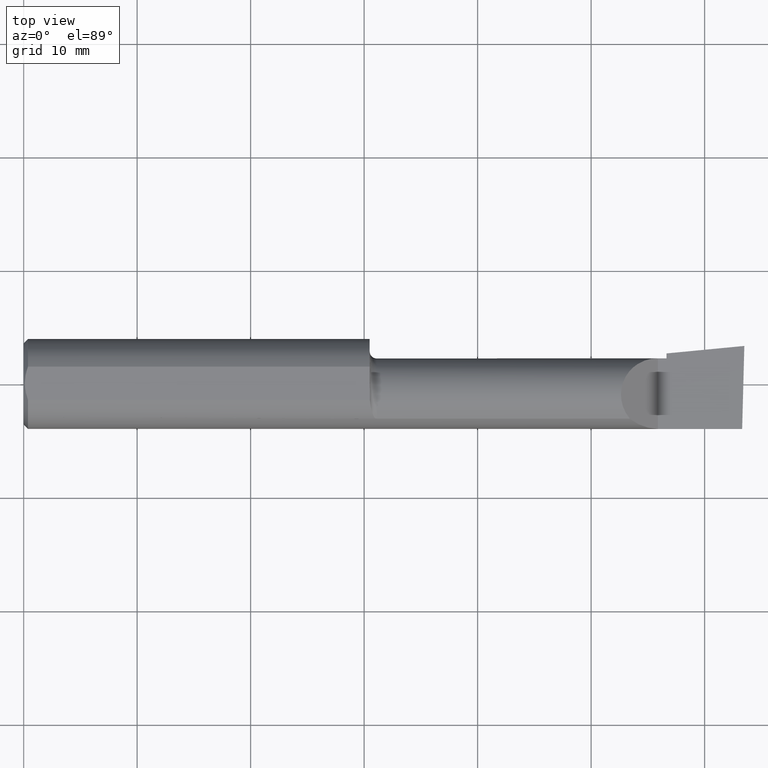
[diagram: clean part render]
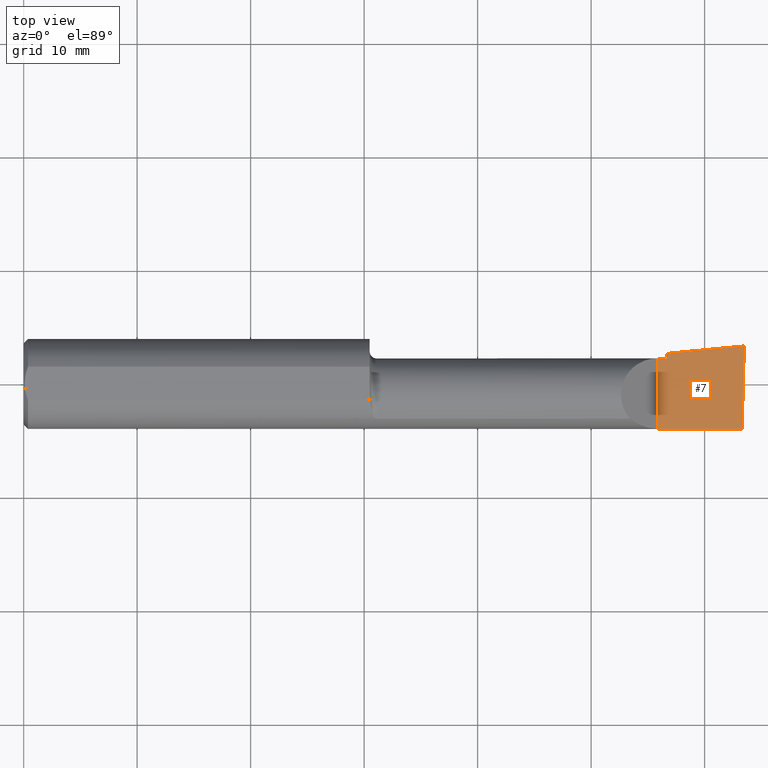
[diagram: same view with one face highlighted and labeled with its STEP entity id]
A machine part, top view. The second image highlights one B-rep face of the part: STEP entity #7.
In plain terms, the highlighted planar face has unit normal (-0, 0, -1).
Its self-contained STEP definition (entity closure, byte-faithful):
#3 = LINE ( 'NONE', #332, #149 ) ;
#7 = ADVANCED_FACE ( 'NONE', ( #220 ), #367, .F. ) ;
#54 = CARTESIAN_POINT ( 'NONE',  ( 2.490006449155409474, -0.2497383096613859377, 6.928474670396028486E-17 ) ) ;
#72 = CARTESIAN_POINT ( 'NONE',  ( 0.7251356390043992572, -0.03899999999999998607, 2.438630851709968122E-16 ) ) ;
#73 = VERTEX_POINT ( 'NONE', #509 ) ;
#86 = CARTESIAN_POINT ( 'NONE',  ( 8.735083959741788277E-19, 0.08889999999999995128, 3.155924005931204823E-16 ) ) ;
#133 = LINE ( 'NONE', #86, #293 ) ;
#149 = VECTOR ( 'NONE', #184, 39.37007874015748143 ) ;
#157 = VECTOR ( 'NONE', #418, 39.37007874015748143 ) ;
#158 = CARTESIAN_POINT ( 'NONE',  ( 2.200000000000000178, 0.08889999999999993741, 9.797174393178826150E-17 ) ) ;
#160 = CARTESIAN_POINT ( 'NONE',  ( 2.500000000000000000, -0.2500000000000000555, 6.829619984160658046E-17 ) ) ;
#167 = EDGE_LOOP ( 'NONE', ( #401, #267, #169, #320, #513, #303 ) ) ;
#169 = ORIENTED_EDGE ( 'NONE', *, *, #438, .F. ) ;
#170 = LINE ( 'NONE', #72, #518 ) ;
#174 = DIRECTION ( 'NONE',  ( 0.9953961983671787417, 0.09584575252022453640, -9.846307923948147589E-17 ) ) ;
#177 = VECTOR ( 'NONE', #305, 39.37007874015748143 ) ;
#184 = DIRECTION ( 'NONE',  ( 6.829619984160658816E-18, 1.000000000000000000, -6.755756298638184848E-34 ) ) ;
#219 = LINE ( 'NONE', #264, #157 ) ;
#220 = FACE_OUTER_BOUND ( 'NONE', #167, .T. ) ;
#228 = EDGE_CURVE ( 'NONE', #256, #73, #133, .T. ) ;
#246 = VERTEX_POINT ( 'NONE', #560 ) ;
#249 = EDGE_CURVE ( 'NONE', #393, #246, #252, .T. ) ;
#252 = LINE ( 'NONE', #54, #177 ) ;
#256 = VERTEX_POINT ( 'NONE', #158 ) ;
#264 = CARTESIAN_POINT ( 'NONE',  ( 2.200000000000000178, -0.2500000000000000555, 9.797174393178826150E-17 ) ) ;
#266 = VECTOR ( 'NONE', #549, 39.37007874015748143 ) ;
#267 = ORIENTED_EDGE ( 'NONE', *, *, #249, .T. ) ;
#282 = DIRECTION ( 'NONE',  ( 1.000000000000000000, -6.829619984160658046E-18, 0.000000000000000000 ) ) ;
#290 = VERTEX_POINT ( 'NONE', #592 ) ;
#293 = VECTOR ( 'NONE', #282, 39.37007874015748143 ) ;
#303 = ORIENTED_EDGE ( 'NONE', *, *, #483, .F. ) ;
#305 = DIRECTION ( 'NONE',  ( 0.02617694830786745225, 0.9996573249755573709, -2.550926060774605708E-18 ) ) ;
#319 = CARTESIAN_POINT ( 'NONE',  ( 2.229999999999999982, 0.1059019569866683358, 3.158699242674304408E-16 ) ) ;
#320 = ORIENTED_EDGE ( 'NONE', *, *, #629, .F. ) ;
#332 = CARTESIAN_POINT ( 'NONE',  ( 2.229999999999999982, -0.2500000000000000555, 9.500418952277011559E-17 ) ) ;
#345 = CARTESIAN_POINT ( 'NONE',  ( 3.121792066109142165E-32, -0.1560999999999999333, 3.155924005931204823E-16 ) ) ;
#356 = EDGE_CURVE ( 'NONE', #393, #290, #508, .T. ) ;
#364 = DIRECTION ( 'NONE',  ( -9.891848030060559526E-17, 0.000000000000000000, -1.000000000000000000 ) ) ;
#367 = PLANE ( 'NONE',  #571 ) ;
#393 = VERTEX_POINT ( 'NONE', #572 ) ;
#401 = ORIENTED_EDGE ( 'NONE', *, *, #356, .F. ) ;
#418 = DIRECTION ( 'NONE',  ( -0.000000000000000000, 1.000000000000000000, -0.000000000000000000 ) ) ;
#438 = EDGE_CURVE ( 'NONE', #460, #246, #170, .T. ) ;
#460 = VERTEX_POINT ( 'NONE', #319 ) ;
#483 = EDGE_CURVE ( 'NONE', #290, #256, #219, .T. ) ;
#508 = LINE ( 'NONE', #345, #266 ) ;
#509 = CARTESIAN_POINT ( 'NONE',  ( 2.229999999999999982, 0.08889999999999999292, 3.155924005931206302E-16 ) ) ;
#513 = ORIENTED_EDGE ( 'NONE', *, *, #228, .F. ) ;
#518 = VECTOR ( 'NONE', #174, 39.37007874015748143 ) ;
#549 = DIRECTION ( 'NONE',  ( -1.000000000000000000, -0.000000000000000000, -0.000000000000000000 ) ) ;
#560 = CARTESIAN_POINT ( 'NONE',  ( 2.500000000000007550, 0.1319000000000240536, 7.610330918600022695E-14 ) ) ;
#571 = AXIS2_PLACEMENT_3D ( 'NONE', #160, #364, #607 ) ;
#572 = CARTESIAN_POINT ( 'NONE',  ( 2.492458454588073469, -0.1561000000000000165, 6.904580041863401145E-17 ) ) ;
#592 = CARTESIAN_POINT ( 'NONE',  ( 2.200000000000000178, -0.1560999999999999888, 9.797174393178826150E-17 ) ) ;
#607 = DIRECTION ( 'NONE',  ( -1.000000000000000000, 0.000000000000000000, 9.891848030060559526E-17 ) ) ;
#629 = EDGE_CURVE ( 'NONE', #73, #460, #3, .T. ) ;